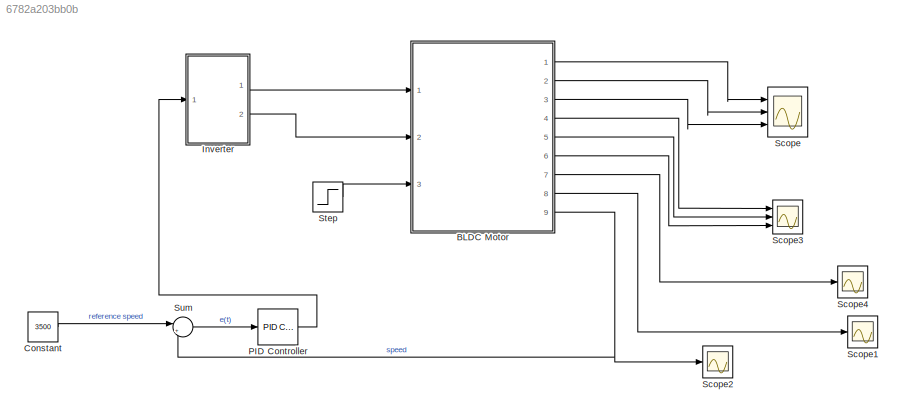
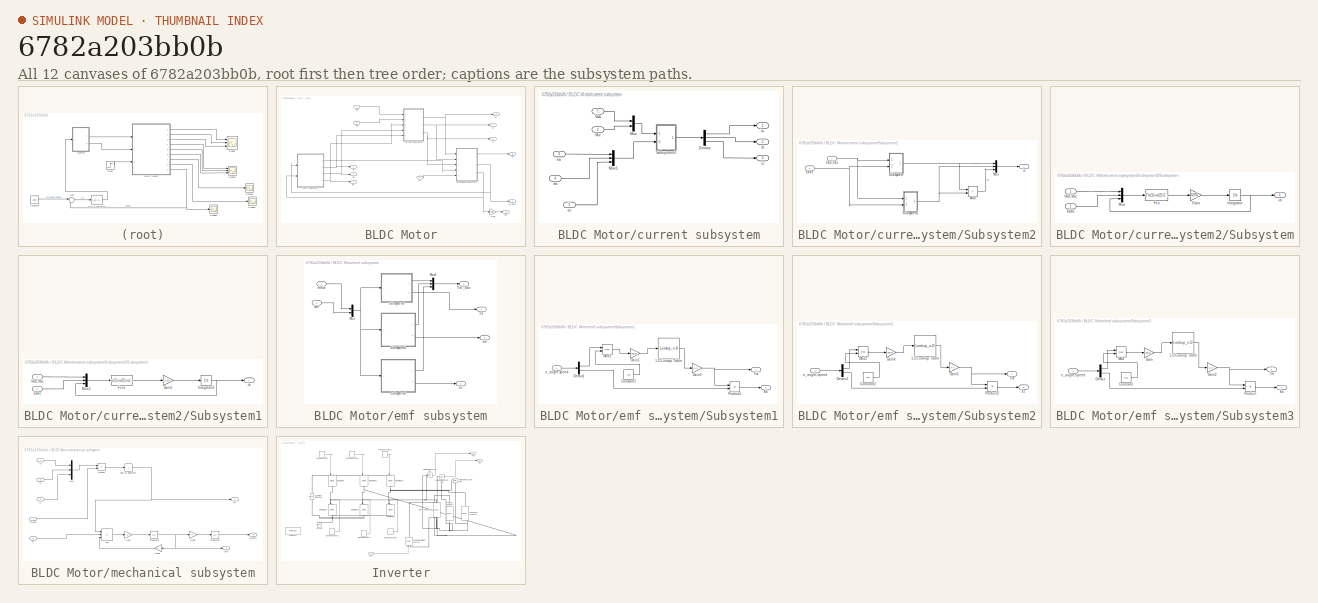
[diagram: thumbnail index - all 12 canvases of the model, root first then tree order]
MODEL slx_6782a203bb0b
KIND model
CONFIG AbsTol = auto
CONFIG EnableMultiTasking = off
CONFIG FixedStep = auto
CONFIG MaxStep = auto
CONFIG MinStep = auto
CONFIG RelTol = 1e-3
CONFIG SampleTimeConstraint = Unconstrained
CONFIG Solver = VariableStepAuto
CONFIG SolverName = VariableStepAuto
CONFIG StartTime = 0.0
CONFIG StopTime = 10.0
WORKSPACE source: mxarray member
WORKSPACE B = 7.9272e-06
WORKSPACE J = 9.25e-05
WORKSPACE K = 0.0255
WORKSPACE L = 0.00028
WORKSPACE P = 8
WORKSPACE R = 0.6
BLOCK [SubSystem] BLDC Motor
  Ports = [3, 9]
  RequestExecContextInheritance = off
BLOCK [Gain] BLDC Motor/Gain
  Gain = 30/pi
BLOCK [Inport] BLDC Motor/TL
  Port = 3
BLOCK [Outport] BLDC Motor/Te
  Port = 8
BLOCK [Inport] BLDC Motor/Vab
BLOCK [Inport] BLDC Motor/Vbc
  Port = 2
BLOCK [SubSystem] BLDC Motor/current subsystem
  Ports = [5, 3]
  RequestExecContextInheritance = off
BLOCK [Demux] BLDC Motor/current subsystem/Demux
  Outputs = 3
  Ports = [1, 3]
BLOCK [Mux] BLDC Motor/current subsystem/Mux
  DisplayOption = bar
  Inputs = 2
  Ports = [2, 1]
BLOCK [Mux] BLDC Motor/current subsystem/Mux1
  DisplayOption = bar
  Inputs = 3
  Ports = [3, 1]
BLOCK [SubSystem] BLDC Motor/current subsystem/Subsystem2
  Ports = [2, 1]
  RequestExecContextInheritance = off
BLOCK [Sum] BLDC Motor/current subsystem/Subsystem2/Add
  IconShape = rectangular
  Inputs = --
  Ports = [2, 1]
BLOCK [Inport] BLDC Motor/current subsystem/Subsystem2/Eabc
  Port = 2
BLOCK [Mux] BLDC Motor/current subsystem/Subsystem2/Mux
  DisplayOption = bar
  Inputs = 3
  Ports = [3, 1]
BLOCK [SubSystem] BLDC Motor/current subsystem/Subsystem2/Subsystem
  Ports = [2, 1]
  RequestExecContextInheritance = off
BLOCK [Inport] BLDC Motor/current subsystem/Subsystem2/Subsystem/Eabc
  Port = 2
BLOCK [Fcn] BLDC Motor/current subsystem/Subsystem2/Subsystem/Fcn
  Expr = 2*u(1)+u(2)-2*u(3)+u(4)+u(5)-3*R*u(6)
BLOCK [Gain] BLDC Motor/current subsystem/Subsystem2/Subsystem/Gain
  Gain = 1/(3*L)
BLOCK [Integrator] BLDC Motor/current subsystem/Subsystem2/Subsystem/Integrator
  Ports = [1, 1]
BLOCK [Mux] BLDC Motor/current subsystem/Subsystem2/Subsystem/Mux
  DisplayOption = bar
  Inputs = 3
  Ports = [3, 1]
BLOCK [Inport] BLDC Motor/current subsystem/Subsystem2/Subsystem/Vab,Vbc
BLOCK [Outport] BLDC Motor/current subsystem/Subsystem2/Subsystem/ia
BLOCK [SubSystem] BLDC Motor/current subsystem/Subsystem2/Subsystem1
  Ports = [2, 1]
  RequestExecContextInheritance = off
BLOCK [Inport] BLDC Motor/current subsystem/Subsystem2/Subsystem1/Eabc
  Port = 2
BLOCK [Fcn] BLDC Motor/current subsystem/Subsystem2/Subsystem1/Fcn1
  Expr = -u(1)+u(2)+u(3)-2*u(4)+u(5)-3*R*u(6)
BLOCK [Gain] BLDC Motor/current subsystem/Subsystem2/Subsystem1/Gain1
  Gain = 1/(3*L)
BLOCK [Integrator] BLDC Motor/current subsystem/Subsystem2/Subsystem1/Integrator1
  Ports = [1, 1]
BLOCK [Mux] BLDC Motor/current subsystem/Subsystem2/Subsystem1/Mux1
  DisplayOption = bar
  Inputs = 3
  Ports = [3, 1]
BLOCK [Inport] BLDC Motor/current subsystem/Subsystem2/Subsystem1/Vab,Vbc
BLOCK [Outport] BLDC Motor/current subsystem/Subsystem2/Subsystem1/ib
BLOCK [Inport] BLDC Motor/current subsystem/Subsystem2/Vab,Vbc
BLOCK [Outport] BLDC Motor/current subsystem/Subsystem2/is
BLOCK [Inport] BLDC Motor/current subsystem/Vab
BLOCK [Inport] BLDC Motor/current subsystem/Vbc
  Port = 2
BLOCK [Inport] BLDC Motor/current subsystem/ea
  Port = 3
BLOCK [Inport] BLDC Motor/current subsystem/eb
  Port = 4
BLOCK [Inport] BLDC Motor/current subsystem/ec
  Port = 5
BLOCK [Outport] BLDC Motor/current subsystem/ia
BLOCK [Outport] BLDC Motor/current subsystem/ib
  Port = 2
BLOCK [Outport] BLDC Motor/current subsystem/ic
  Port = 3
BLOCK [Outport] BLDC Motor/e_theta
  Port = 7
BLOCK [Outport] BLDC Motor/ea
  Port = 3
BLOCK [Outport] BLDC Motor/eb
  Port = 2
BLOCK [Outport] BLDC Motor/ec
BLOCK [SubSystem] BLDC Motor/emf subsystem
  Ports = [2, 4]
  RequestExecContextInheritance = off
BLOCK [Mux] BLDC Motor/emf subsystem/Mux
  DisplayOption = bar
  Inputs = 2
  Ports = [2, 1]
BLOCK [Mux] BLDC Motor/emf subsystem/Mux1
  DisplayOption = bar
  Inputs = 3
  Ports = [3, 1]
BLOCK [SubSystem] BLDC Motor/emf subsystem/Subsystem1
  Ports = [1, 2]
  RequestExecContextInheritance = off
BLOCK [Lookup_n-D] BLDC Motor/emf subsystem/Subsystem1/1-D Lookup Table
  BreakpointsForDimension1 = [0,40,60,120,180,240,300,320,360]
  InternalRulePriority = Speed
  InterpMethod = Cubic spline
  NumberOfTableDimensions = 1
  Ports = [1, 1]
  RndMeth = Simplest
  Table = [-1,-1,-1,1,1,1,-1,-1,-1]
BLOCK [Constant] BLDC Motor/emf subsystem/Subsystem1/Constant1
  Value = 2*pi
BLOCK [Demux] BLDC Motor/emf subsystem/Subsystem1/Demux1
  Outputs = 2
  Ports = [1, 2]
BLOCK [Outport] BLDC Motor/emf subsystem/Subsystem1/Eb
  Port = 2
BLOCK [Gain] BLDC Motor/emf subsystem/Subsystem1/Gain1
  Gain = 180/pi
BLOCK [Gain] BLDC Motor/emf subsystem/Subsystem1/Gain3
  Gain = K/2
BLOCK [Math] BLDC Motor/emf subsystem/Subsystem1/Mod1
  Operator = mod
  Ports = [2, 1]
BLOCK [Product] BLDC Motor/emf subsystem/Subsystem1/Product1
  Ports = [2, 1]
BLOCK [Outport] BLDC Motor/emf subsystem/Subsystem1/Tra
BLOCK [Inport] BLDC Motor/emf subsystem/Subsystem1/e_angle,speed
BLOCK [SubSystem] BLDC Motor/emf subsystem/Subsystem2
  Ports = [1, 2]
  RequestExecContextInheritance = off
BLOCK [Lookup_n-D] BLDC Motor/emf subsystem/Subsystem2/1-D Lookup Table
  BreakpointsForDimension1 = [0,60,80,120,180,240,275,360]
  InternalRulePriority = Speed
  InterpMethod = Cubic spline
  NumberOfTableDimensions = 1
  Ports = [1, 1]
  RndMeth = Simplest
  Table = [1,-1,-1,-1,-1,1,1,1]
BLOCK [Constant] BLDC Motor/emf subsystem/Subsystem2/Constant2
  Value = 2*pi
BLOCK [Demux] BLDC Motor/emf subsystem/Subsystem2/Demux2
  Outputs = 2
  Ports = [1, 2]
BLOCK [Outport] BLDC Motor/emf subsystem/Subsystem2/Ec
  Port = 2
BLOCK [Gain] BLDC Motor/emf subsystem/Subsystem2/Gain4
  Gain = 180/pi
BLOCK [Gain] BLDC Motor/emf subsystem/Subsystem2/Gain5
  Gain = K/2
BLOCK [Math] BLDC Motor/emf subsystem/Subsystem2/Mod2
  Operator = mod
  Ports = [2, 1]
BLOCK [Product] BLDC Motor/emf subsystem/Subsystem2/Product2
  Ports = [2, 1]
BLOCK [Outport] BLDC Motor/emf subsystem/Subsystem2/Tra
BLOCK [Inport] BLDC Motor/emf subsystem/Subsystem2/e_angle,speed
BLOCK [SubSystem] BLDC Motor/emf subsystem/Subsystem3
  Ports = [1, 2]
  RequestExecContextInheritance = off
BLOCK [Lookup_n-D] BLDC Motor/emf subsystem/Subsystem3/1-D Lookup Table
  BreakpointsForDimension1 = [0,40,60,80,120,180,250,275,300,360]
  InternalRulePriority = Speed
  InterpMethod = Cubic spline
  NumberOfTableDimensions = 1
  Ports = [1, 1]
  RndMeth = Simplest
  Table = [1,1,1,1,1,-1,-1,-1,-1,1]
BLOCK [Constant] BLDC Motor/emf subsystem/Subsystem3/Constant
  Value = 2*pi
BLOCK [Demux] BLDC Motor/emf subsystem/Subsystem3/Demux
  Outputs = 2
  Ports = [1, 2]
BLOCK [Outport] BLDC Motor/emf subsystem/Subsystem3/Ea
  Port = 2
BLOCK [Gain] BLDC Motor/emf subsystem/Subsystem3/Gain
  Gain = 180/pi
BLOCK [Gain] BLDC Motor/emf subsystem/Subsystem3/Gain2
  Gain = K/2
BLOCK [Math] BLDC Motor/emf subsystem/Subsystem3/Mod
  Operator = mod
  Ports = [2, 1]
BLOCK [Product] BLDC Motor/emf subsystem/Subsystem3/Product
  Ports = [2, 1]
BLOCK [Outport] BLDC Motor/emf subsystem/Subsystem3/Tra
BLOCK [Inport] BLDC Motor/emf subsystem/Subsystem3/e_angle,speed
BLOCK [Outport] BLDC Motor/emf subsystem/Tra _abc
BLOCK [Outport] BLDC Motor/emf subsystem/ea
  Port = 4
BLOCK [Outport] BLDC Motor/emf subsystem/eb
  Port = 3
BLOCK [Outport] BLDC Motor/emf subsystem/ec
  Port = 2
BLOCK [Inport] BLDC Motor/emf subsystem/theta
BLOCK [Inport] BLDC Motor/emf subsystem/wm
  Port = 2
BLOCK [Outport] BLDC Motor/ia
  Port = 6
BLOCK [Outport] BLDC Motor/ib
  Port = 4
BLOCK [Outport] BLDC Motor/ic
  Port = 5
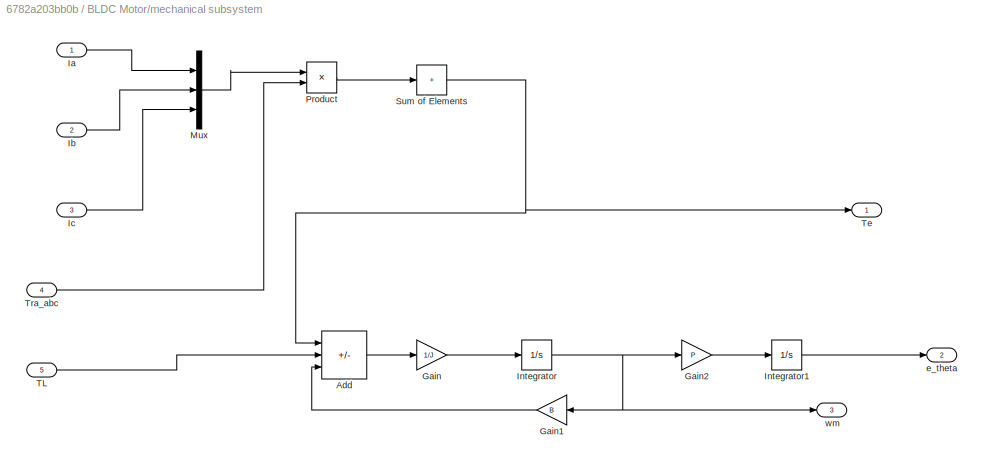
BLOCK [SubSystem] BLDC Motor/mechanical subsystem
  Ports = [5, 3]
  RequestExecContextInheritance = off
BLOCK [Sum] BLDC Motor/mechanical subsystem/Add
  IconShape = rectangular
  Inputs = +--
  Ports = [3, 1]
BLOCK [Gain] BLDC Motor/mechanical subsystem/Gain
  Gain = 1/J
BLOCK [Gain] BLDC Motor/mechanical subsystem/Gain1
  Gain = B
BLOCK [Gain] BLDC Motor/mechanical subsystem/Gain2
  Gain = P
BLOCK [Inport] BLDC Motor/mechanical subsystem/Ia
BLOCK [Inport] BLDC Motor/mechanical subsystem/Ib
  Port = 2
BLOCK [Inport] BLDC Motor/mechanical subsystem/Ic
  Port = 3
BLOCK [Integrator] BLDC Motor/mechanical subsystem/Integrator
  Ports = [1, 1]
BLOCK [Integrator] BLDC Motor/mechanical subsystem/Integrator1
  Ports = [1, 1]
BLOCK [Mux] BLDC Motor/mechanical subsystem/Mux
  DisplayOption = bar
  Inputs = 3
  Ports = [3, 1]
BLOCK [Product] BLDC Motor/mechanical subsystem/Product
  NameLocation = top
  Ports = [2, 1]
BLOCK [Sum] BLDC Motor/mechanical subsystem/Sum of Elements
  IconShape = rectangular
  Inputs = +
  Ports = [1, 1]
BLOCK [Inport] BLDC Motor/mechanical subsystem/TL
  Port = 5
BLOCK [Outport] BLDC Motor/mechanical subsystem/Te
BLOCK [Inport] BLDC Motor/mechanical subsystem/Tra_abc
  Port = 4
BLOCK [Outport] BLDC Motor/mechanical subsystem/e_theta
  Port = 2
BLOCK [Outport] BLDC Motor/mechanical subsystem/wm
  Port = 3
BLOCK [Outport] BLDC Motor/wm
  Port = 9
BLOCK [Constant] Constant
  Value = 3500
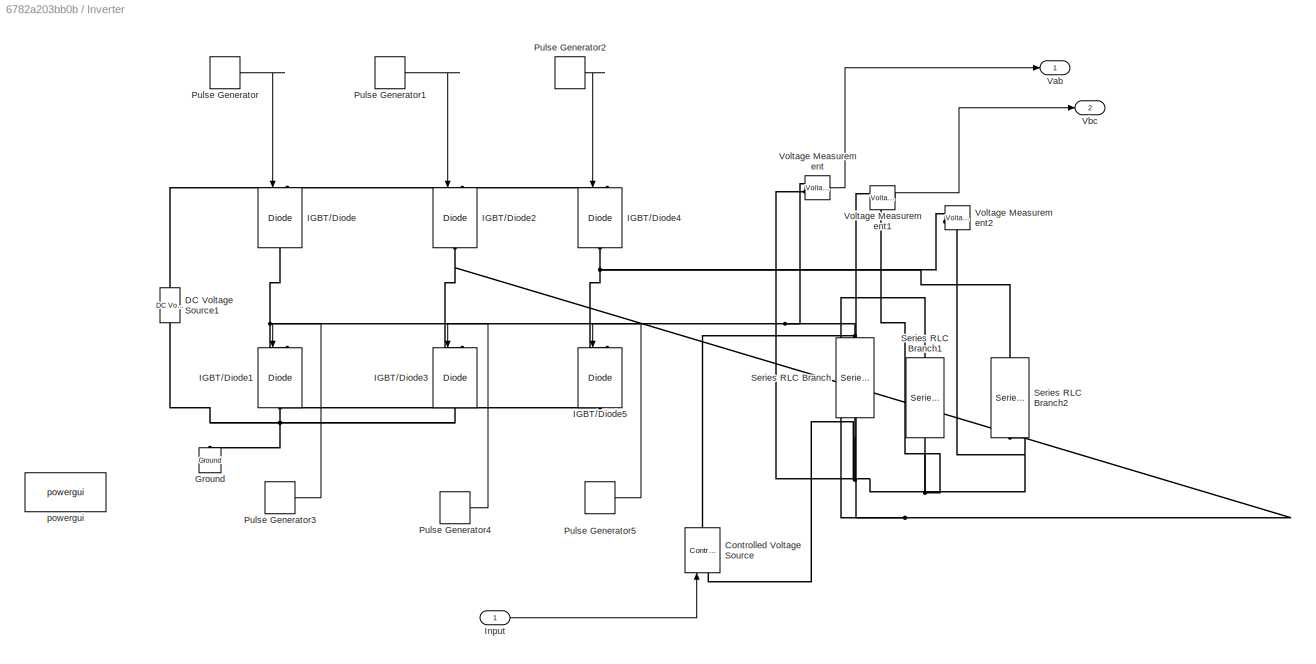
BLOCK [SubSystem] Inverter
  Ports = [1, 2]
  RequestExecContextInheritance = off
BLOCK [Reference] Inverter/Controlled Voltage Source  REF=powerlib/Electrical
Sources/Controlled Voltage Source
  NameLocation = right
  Ports = [1, 0, 0, 0, 0, 1, 1]
  SourceBlock = powerlib/Electrical\nSources/Controlled Voltage Source
  SourceProductBaseCode = PS
  SourceType = Controlled Voltage Source
BLOCK [Reference] Inverter/DC Voltage Source1  REF=powerlib/Electrical
Sources/DC Voltage Source
  NameLocation = right
  Ports = [0, 0, 0, 0, 0, 1, 1]
  SourceBlock = powerlib/Electrical\nSources/DC Voltage Source
  SourceProductBaseCode = PS
  SourceType = DC Voltage Source
BLOCK [Reference] Inverter/Ground  REF=powerlib/Elements/Ground
  NameLocation = right
  Ports = [0, 0, 0, 0, 0, 1]
  SourceBlock = powerlib/Elements/Ground
  SourceProductBaseCode = PS
  SourceType = Ground
BLOCK [Reference] Inverter/IGBT//Diode  REF=powerlib/Power
Electronics/IGBT//Diode
  NameLocation = left
  Ports = [1, 0, 0, 0, 0, 1, 1]
  SourceBlock = powerlib/Power\nElectronics/IGBT//Diode
  SourceProductBaseCode = PS
  SourceType = IGBT/Diode
BLOCK [Reference] Inverter/IGBT//Diode1  REF=powerlib/Power
Electronics/IGBT//Diode
  NameLocation = left
  Ports = [1, 0, 0, 0, 0, 1, 1]
  SourceBlock = powerlib/Power\nElectronics/IGBT//Diode
  SourceProductBaseCode = PS
  SourceType = IGBT/Diode
BLOCK [Reference] Inverter/IGBT//Diode2  REF=powerlib/Power
Electronics/IGBT//Diode
  NameLocation = left
  Ports = [1, 0, 0, 0, 0, 1, 1]
  SourceBlock = powerlib/Power\nElectronics/IGBT//Diode
  SourceProductBaseCode = PS
  SourceType = IGBT/Diode
BLOCK [Reference] Inverter/IGBT//Diode3  REF=powerlib/Power
Electronics/IGBT//Diode
  NameLocation = left
  Ports = [1, 0, 0, 0, 0, 1, 1]
  SourceBlock = powerlib/Power\nElectronics/IGBT//Diode
  SourceProductBaseCode = PS
  SourceType = IGBT/Diode
BLOCK [Reference] Inverter/IGBT//Diode4  REF=powerlib/Power
Electronics/IGBT//Diode
  NameLocation = left
  Ports = [1, 0, 0, 0, 0, 1, 1]
  SourceBlock = powerlib/Power\nElectronics/IGBT//Diode
  SourceProductBaseCode = PS
  SourceType = IGBT/Diode
BLOCK [Reference] Inverter/IGBT//Diode5  REF=powerlib/Power
Electronics/IGBT//Diode
  NameLocation = left
  Ports = [1, 0, 0, 0, 0, 1, 1]
  SourceBlock = powerlib/Power\nElectronics/IGBT//Diode
  SourceProductBaseCode = PS
  SourceType = IGBT/Diode
BLOCK [Inport] Inverter/Input
BLOCK [DiscretePulseGenerator] Inverter/Pulse Generator
  Period = 2e-3
  Ports = [0, 1]
  PulseType = Time based
  PulseWidth = 50
BLOCK [DiscretePulseGenerator] Inverter/Pulse Generator1
  Period = 2e-3
  PhaseDelay = (2e-3)*(120/360)
  Ports = [0, 1]
  PulseType = Time based
  PulseWidth = 50
BLOCK [DiscretePulseGenerator] Inverter/Pulse Generator2
  Period = 2e-3
  PhaseDelay = (2e-3)*(240/360)
  Ports = [0, 1]
  PulseType = Time based
  PulseWidth = 50
BLOCK [DiscretePulseGenerator] Inverter/Pulse Generator3
  Period = 2e-3
  PhaseDelay = (2e-3)*(180/360)
  Ports = [0, 1]
  PulseType = Time based
  PulseWidth = 50
BLOCK [DiscretePulseGenerator] Inverter/Pulse Generator4
  Period = 2e-3
  PhaseDelay = (2e-3)*(300/360)
  Ports = [0, 1]
  PulseType = Time based
  PulseWidth = 50
BLOCK [DiscretePulseGenerator] Inverter/Pulse Generator5
  Period = 2e-3
  PhaseDelay = (2e-3)*(60/360)
  Ports = [0, 1]
  PulseType = Time based
  PulseWidth = 50
BLOCK [Reference] Inverter/Series RLC Branch  REF=powerlib/Elements/Series RLC Branch
  NameLocation = left
  Ports = [0, 0, 0, 0, 0, 1, 1]
  SourceBlock = powerlib/Elements/Series RLC Branch
  SourceProductBaseCode = PS
  SourceType = Series RLC Branch
BLOCK [Reference] Inverter/Series RLC Branch1  REF=powerlib/Elements/Series RLC Branch
  NameLocation = left
  Ports = [0, 0, 0, 0, 0, 1, 1]
  SourceBlock = powerlib/Elements/Series RLC Branch
  SourceProductBaseCode = PS
  SourceType = Series RLC Branch
BLOCK [Reference] Inverter/Series RLC Branch2  REF=powerlib/Elements/Series RLC Branch
  NameLocation = left
  Ports = [0, 0, 0, 0, 0, 1, 1]
  SourceBlock = powerlib/Elements/Series RLC Branch
  SourceProductBaseCode = PS
  SourceType = Series RLC Branch
BLOCK [Outport] Inverter/Vab
BLOCK [Outport] Inverter/Vbc
  Port = 2
BLOCK [Reference] Inverter/Voltage Measurement  REF=powerlib/Measurements/Voltage Measurement
  Ports = [0, 1, 0, 0, 0, 2]
  SourceBlock = powerlib/Measurements/Voltage Measurement
  SourceProductBaseCode = PS
  SourceType = Voltage Measurement
  UserDataPersistent = on
BLOCK [Reference] Inverter/Voltage Measurement1  REF=powerlib/Measurements/Voltage Measurement
  Ports = [0, 1, 0, 0, 0, 2]
  SourceBlock = powerlib/Measurements/Voltage Measurement
  SourceProductBaseCode = PS
  SourceType = Voltage Measurement
  UserDataPersistent = on
BLOCK [Reference] Inverter/Voltage Measurement2  REF=powerlib/Measurements/Voltage Measurement
  Ports = [0, 1, 0, 0, 0, 2]
  SourceBlock = powerlib/Measurements/Voltage Measurement
  SourceProductBaseCode = PS
  SourceType = Voltage Measurement
  UserDataPersistent = on
BLOCK [Reference] Inverter/powergui  REF=powerlib/powergui
  Ports = []
  Priority = 1
  SourceBlock = powerlib/powergui
  SourceProductBaseCode = PS
  SourceType = PSB option menu block
BLOCK [Reference] PID Controller  REF=simulink/Continuous/PID Controller
  Ports = [1, 1]
  SourceBlock = simulink/Continuous/PID Controller
  SourceProductBaseCode = SL
  SourceType = PID 1dof
BLOCK [Scope] Scope
  Floating = off
  NumInputPorts = 3
  Ports = [3]
  ScopeSpecificationString = Simulink.scopes.TimeScopeBlockCfg('CurrentConfiguration', extmgr.ConfigurationSet(extmgr.Configuration('Core','General UI',true),extmgr.Configuration('Core','Source UI',true),extmgr.Configuration('Sources','WiredSimulink',true,'DataLoggingVariableName','ScopeData1'),extmgr.Configuration('Visuals','Time Domain',true,'SerializedDisplays',{struct('MinYLimReal','-120.65892','MaxYLimReal','124.34706','...<+2775ch>
BLOCK [Scope] Scope1
  Floating = off
  NumInputPorts = 1
  Ports = [1]
  ScopeSpecificationString = Simulink.scopes.TimeScopeBlockCfg('CurrentConfiguration', extmgr.ConfigurationSet(extmgr.Configuration('Core','General UI',true),extmgr.Configuration('Core','Source UI',true),extmgr.Configuration('Sources','WiredSimulink',true,'DataLoggingVariableName','ScopeData2'),extmgr.Configuration('Visuals','Time Domain',true,'SerializedDisplays',{struct('MinYLimReal','-505.66862','MaxYLimReal','656.25149','...<+1404ch>
BLOCK [Scope] Scope2
  Floating = off
  NumInputPorts = 1
  Ports = [1]
  ScopeSpecificationString = Simulink.scopes.TimeScopeBlockCfg('CurrentConfiguration', extmgr.ConfigurationSet(extmgr.Configuration('Core','General UI',true),extmgr.Configuration('Core','Source UI',true),extmgr.Configuration('Sources','WiredSimulink',true,'DataLoggingVariableName','ScopeData3'),extmgr.Configuration('Visuals','Time Domain',true,'SerializedDisplays',{struct('MinYLimReal','-17311.48572','MaxYLimReal','14299.5116...<+1438ch>
BLOCK [Scope] Scope3
  Floating = off
  NumInputPorts = 3
  Ports = [3]
  ScopeSpecificationString = Simulink.scopes.TimeScopeBlockCfg('CurrentConfiguration', extmgr.ConfigurationSet(extmgr.Configuration('Core','General UI',true),extmgr.Configuration('Core','Source UI',true),extmgr.Configuration('Sources','WiredSimulink',true,'DataLoggingVariableName','ScopeData4'),extmgr.Configuration('Visuals','Time Domain',true,'SerializedDisplays',{struct('MinYLimReal','-38.91852','MaxYLimReal','38.32328','YL...<+2775ch>
BLOCK [Scope] Scope4
  Floating = off
  NumInputPorts = 1
  Ports = [1]
  ScopeSpecificationString = Simulink.scopes.TimeScopeBlockCfg('CurrentConfiguration', extmgr.ConfigurationSet(extmgr.Configuration('Core','General UI',true),extmgr.Configuration('Core','Source UI',true),extmgr.Configuration('Sources','WiredSimulink',true),extmgr.Configuration('Visuals','Time Domain',true,'SerializedDisplays',{struct('MinYLimReal','-3470.44468','MaxYLimReal','31234.00216','YLabelReal','','MinYLimMag','  0.000...<+1383ch>
BLOCK [Step] Step
  After = 10
  SampleTime = 0
  Time = 0.1
BLOCK [Sum] Sum
  Inputs = |+-
  Ports = [2, 1]
LINE BLDC Motor/Gain:1 -> BLDC Motor/wm:1
LINE BLDC Motor/TL:1 -> BLDC Motor/mechanical subsystem:5
LINE BLDC Motor/Vab:1 -> BLDC Motor/current subsystem:1
LINE BLDC Motor/Vbc:1 -> BLDC Motor/current subsystem:2
LINE BLDC Motor/current subsystem/Demux:1 -> BLDC Motor/current subsystem/ia:1
LINE BLDC Motor/current subsystem/Demux:2 -> BLDC Motor/current subsystem/ib:1
LINE BLDC Motor/current subsystem/Demux:3 -> BLDC Motor/current subsystem/ic:1
LINE BLDC Motor/current subsystem/Mux1:1 -> BLDC Motor/current subsystem/Subsystem2:2
LINE BLDC Motor/current subsystem/Mux:1 -> BLDC Motor/current subsystem/Subsystem2:1
LINE BLDC Motor/current subsystem/Subsystem2/Add:1 -> BLDC Motor/current subsystem/Subsystem2/Mux:3
NET BLDC Motor/current subsystem/Subsystem2/Eabc:1 -> BLDC Motor/current subsystem/Subsystem2/Subsystem1:2, BLDC Motor/current subsystem/Subsystem2/Subsystem:2
LINE BLDC Motor/current subsystem/Subsystem2/Mux:1 -> BLDC Motor/current subsystem/Subsystem2/is:1
LINE BLDC Motor/current subsystem/Subsystem2/Subsystem/Eabc:1 -> BLDC Motor/current subsystem/Subsystem2/Subsystem/Mux:2
LINE BLDC Motor/current subsystem/Subsystem2/Subsystem/Fcn:1 -> BLDC Motor/current subsystem/Subsystem2/Subsystem/Gain:1
LINE BLDC Motor/current subsystem/Subsystem2/Subsystem/Gain:1 -> BLDC Motor/current subsystem/Subsystem2/Subsystem/Integrator:1
NET BLDC Motor/current subsystem/Subsystem2/Subsystem/Integrator:1 -> BLDC Motor/current subsystem/Subsystem2/Subsystem/Mux:3, BLDC Motor/current subsystem/Subsystem2/Subsystem/ia:1
LINE BLDC Motor/current subsystem/Subsystem2/Subsystem/Mux:1 -> BLDC Motor/current subsystem/Subsystem2/Subsystem/Fcn:1
LINE BLDC Motor/current subsystem/Subsystem2/Subsystem/Vab,Vbc:1 -> BLDC Motor/current subsystem/Subsystem2/Subsystem/Mux:1
LINE BLDC Motor/current subsystem/Subsystem2/Subsystem1/Eabc:1 -> BLDC Motor/current subsystem/Subsystem2/Subsystem1/Mux1:2
LINE BLDC Motor/current subsystem/Subsystem2/Subsystem1/Fcn1:1 -> BLDC Motor/current subsystem/Subsystem2/Subsystem1/Gain1:1
LINE BLDC Motor/current subsystem/Subsystem2/Subsystem1/Gain1:1 -> BLDC Motor/current subsystem/Subsystem2/Subsystem1/Integrator1:1
NET BLDC Motor/current subsystem/Subsystem2/Subsystem1/Integrator1:1 -> BLDC Motor/current subsystem/Subsystem2/Subsystem1/Mux1:3, BLDC Motor/current subsystem/Subsystem2/Subsystem1/ib:1
LINE BLDC Motor/current subsystem/Subsystem2/Subsystem1/Mux1:1 -> BLDC Motor/current subsystem/Subsystem2/Subsystem1/Fcn1:1
LINE BLDC Motor/current subsystem/Subsystem2/Subsystem1/Vab,Vbc:1 -> BLDC Motor/current subsystem/Subsystem2/Subsystem1/Mux1:1
NET BLDC Motor/current subsystem/Subsystem2/Subsystem1:1 -> BLDC Motor/current subsystem/Subsystem2/Add:2, BLDC Motor/current subsystem/Subsystem2/Mux:2
NET BLDC Motor/current subsystem/Subsystem2/Subsystem:1 -> BLDC Motor/current subsystem/Subsystem2/Add:1, BLDC Motor/current subsystem/Subsystem2/Mux:1
NET BLDC Motor/current subsystem/Subsystem2/Vab,Vbc:1 -> BLDC Motor/current subsystem/Subsystem2/Subsystem1:1, BLDC Motor/current subsystem/Subsystem2/Subsystem:1
LINE BLDC Motor/current subsystem/Subsystem2:1 -> BLDC Motor/current subsystem/Demux:1
LINE BLDC Motor/current subsystem/Vab:1 -> BLDC Motor/current subsystem/Mux:1
LINE BLDC Motor/current subsystem/Vbc:1 -> BLDC Motor/current subsystem/Mux:2
LINE BLDC Motor/current subsystem/ea:1 -> BLDC Motor/current subsystem/Mux1:1
LINE BLDC Motor/current subsystem/eb:1 -> BLDC Motor/current subsystem/Mux1:2
LINE BLDC Motor/current subsystem/ec:1 -> BLDC Motor/current subsystem/Mux1:3
NET BLDC Motor/current subsystem:1 -> BLDC Motor/ia:1, BLDC Motor/mechanical subsystem:1
NET BLDC Motor/current subsystem:2 -> BLDC Motor/ib:1, BLDC Motor/mechanical subsystem:2
NET BLDC Motor/current subsystem:3 -> BLDC Motor/ic:1, BLDC Motor/mechanical subsystem:3
LINE BLDC Motor/emf subsystem/Mux1:1 -> BLDC Motor/emf subsystem/Tra _abc:1
NET BLDC Motor/emf subsystem/Mux:1 -> BLDC Motor/emf subsystem/Subsystem1:1, BLDC Motor/emf subsystem/Subsystem2:1, BLDC Motor/emf subsystem/Subsystem3:1
LINE BLDC Motor/emf subsystem/Subsystem1/1-D Lookup Table:1 -> BLDC Motor/emf subsystem/Subsystem1/Gain3:1
LINE BLDC Motor/emf subsystem/Subsystem1/Constant1:1 -> BLDC Motor/emf subsystem/Subsystem1/Mod1:2
LINE BLDC Motor/emf subsystem/Subsystem1/Demux1:1 -> BLDC Motor/emf subsystem/Subsystem1/Mod1:1
LINE BLDC Motor/emf subsystem/Subsystem1/Demux1:2 -> BLDC Motor/emf subsystem/Subsystem1/Product1:2
LINE BLDC Motor/emf subsystem/Subsystem1/Gain1:1 -> BLDC Motor/emf subsystem/Subsystem1/1-D Lookup Table:1
NET BLDC Motor/emf subsystem/Subsystem1/Gain3:1 -> BLDC Motor/emf subsystem/Subsystem1/Product1:1, BLDC Motor/emf subsystem/Subsystem1/Tra:1
LINE BLDC Motor/emf subsystem/Subsystem1/Mod1:1 -> BLDC Motor/emf subsystem/Subsystem1/Gain1:1
LINE BLDC Motor/emf subsystem/Subsystem1/Product1:1 -> BLDC Motor/emf subsystem/Subsystem1/Eb:1
LINE BLDC Motor/emf subsystem/Subsystem1/e_angle,speed:1 -> BLDC Motor/emf subsystem/Subsystem1/Demux1:1
LINE BLDC Motor/emf subsystem/Subsystem1:1 -> BLDC Motor/emf subsystem/Mux1:2
LINE BLDC Motor/emf subsystem/Subsystem1:2 -> BLDC Motor/emf subsystem/eb:1
LINE BLDC Motor/emf subsystem/Subsystem2/1-D Lookup Table:1 -> BLDC Motor/emf subsystem/Subsystem2/Gain5:1
LINE BLDC Motor/emf subsystem/Subsystem2/Constant2:1 -> BLDC Motor/emf subsystem/Subsystem2/Mod2:2
LINE BLDC Motor/emf subsystem/Subsystem2/Demux2:1 -> BLDC Motor/emf subsystem/Subsystem2/Mod2:1
LINE BLDC Motor/emf subsystem/Subsystem2/Demux2:2 -> BLDC Motor/emf subsystem/Subsystem2/Product2:2
LINE BLDC Motor/emf subsystem/Subsystem2/Gain4:1 -> BLDC Motor/emf subsystem/Subsystem2/1-D Lookup Table:1
NET BLDC Motor/emf subsystem/Subsystem2/Gain5:1 -> BLDC Motor/emf subsystem/Subsystem2/Product2:1, BLDC Motor/emf subsystem/Subsystem2/Tra:1
LINE BLDC Motor/emf subsystem/Subsystem2/Mod2:1 -> BLDC Motor/emf subsystem/Subsystem2/Gain4:1
LINE BLDC Motor/emf subsystem/Subsystem2/Product2:1 -> BLDC Motor/emf subsystem/Subsystem2/Ec:1
LINE BLDC Motor/emf subsystem/Subsystem2/e_angle,speed:1 -> BLDC Motor/emf subsystem/Subsystem2/Demux2:1
LINE BLDC Motor/emf subsystem/Subsystem2:1 -> BLDC Motor/emf subsystem/Mux1:3
LINE BLDC Motor/emf subsystem/Subsystem2:2 -> BLDC Motor/emf subsystem/ec:1
LINE BLDC Motor/emf subsystem/Subsystem3/1-D Lookup Table:1 -> BLDC Motor/emf subsystem/Subsystem3/Gain2:1
LINE BLDC Motor/emf subsystem/Subsystem3/Constant:1 -> BLDC Motor/emf subsystem/Subsystem3/Mod:2
LINE BLDC Motor/emf subsystem/Subsystem3/Demux:1 -> BLDC Motor/emf subsystem/Subsystem3/Mod:1
LINE BLDC Motor/emf subsystem/Subsystem3/Demux:2 -> BLDC Motor/emf subsystem/Subsystem3/Product:2
NET BLDC Motor/emf subsystem/Subsystem3/Gain2:1 -> BLDC Motor/emf subsystem/Subsystem3/Product:1, BLDC Motor/emf subsystem/Subsystem3/Tra:1
LINE BLDC Motor/emf subsystem/Subsystem3/Gain:1 -> BLDC Motor/emf subsystem/Subsystem3/1-D Lookup Table:1
LINE BLDC Motor/emf subsystem/Subsystem3/Mod:1 -> BLDC Motor/emf subsystem/Subsystem3/Gain:1
LINE BLDC Motor/emf subsystem/Subsystem3/Product:1 -> BLDC Motor/emf subsystem/Subsystem3/Ea:1
LINE BLDC Motor/emf subsystem/Subsystem3/e_angle,speed:1 -> BLDC Motor/emf subsystem/Subsystem3/Demux:1
LINE BLDC Motor/emf subsystem/Subsystem3:1 -> BLDC Motor/emf subsystem/Mux1:1
LINE BLDC Motor/emf subsystem/Subsystem3:2 -> BLDC Motor/emf subsystem/ea:1
LINE BLDC Motor/emf subsystem/theta:1 -> BLDC Motor/emf subsystem/Mux:1
LINE BLDC Motor/emf subsystem/wm:1 -> BLDC Motor/emf subsystem/Mux:2
LINE BLDC Motor/emf subsystem:1 -> BLDC Motor/mechanical subsystem:4
NET BLDC Motor/emf subsystem:2 -> BLDC Motor/current subsystem:5, BLDC Motor/ec:1
NET BLDC Motor/emf subsystem:3 -> BLDC Motor/current subsystem:4, BLDC Motor/eb:1
NET BLDC Motor/emf subsystem:4 -> BLDC Motor/current subsystem:3, BLDC Motor/ea:1
LINE BLDC Motor/mechanical subsystem/Add:1 -> BLDC Motor/mechanical subsystem/Gain:1
LINE BLDC Motor/mechanical subsystem/Gain1:1 -> BLDC Motor/mechanical subsystem/Add:3
LINE BLDC Motor/mechanical subsystem/Gain2:1 -> BLDC Motor/mechanical subsystem/Integrator1:1
LINE BLDC Motor/mechanical subsystem/Gain:1 -> BLDC Motor/mechanical subsystem/Integrator:1
LINE BLDC Motor/mechanical subsystem/Ia:1 -> BLDC Motor/mechanical subsystem/Mux:1
LINE BLDC Motor/mechanical subsystem/Ib:1 -> BLDC Motor/mechanical subsystem/Mux:2
LINE BLDC Motor/mechanical subsystem/Ic:1 -> BLDC Motor/mechanical subsystem/Mux:3
LINE BLDC Motor/mechanical subsystem/Integrator1:1 -> BLDC Motor/mechanical subsystem/e_theta:1
NET BLDC Motor/mechanical subsystem/Integrator:1 -> BLDC Motor/mechanical subsystem/Gain1:1, BLDC Motor/mechanical subsystem/Gain2:1, BLDC Motor/mechanical subsystem/wm:1
LINE BLDC Motor/mechanical subsystem/Mux:1 -> BLDC Motor/mechanical subsystem/Product:1
LINE BLDC Motor/mechanical subsystem/Product:1 -> BLDC Motor/mechanical subsystem/Sum of Elements:1
NET BLDC Motor/mechanical subsystem/Sum of Elements:1 -> BLDC Motor/mechanical subsystem/Add:1, BLDC Motor/mechanical subsystem/Te:1
LINE BLDC Motor/mechanical subsystem/TL:1 -> BLDC Motor/mechanical subsystem/Add:2
LINE BLDC Motor/mechanical subsystem/Tra_abc:1 -> BLDC Motor/mechanical subsystem/Product:2
LINE BLDC Motor/mechanical subsystem:1 -> BLDC Motor/Te:1
NET BLDC Motor/mechanical subsystem:2 -> BLDC Motor/e_theta:1, BLDC Motor/emf subsystem:1
NET BLDC Motor/mechanical subsystem:3 -> BLDC Motor/Gain:1, BLDC Motor/emf subsystem:2
LINE BLDC Motor:1 -> Scope:1
LINE BLDC Motor:2 -> Scope:2
LINE BLDC Motor:3 -> Scope:3
LINE BLDC Motor:4 -> Scope3:1
LINE BLDC Motor:5 -> Scope3:2
LINE BLDC Motor:6 -> Scope3:3
LINE BLDC Motor:7 -> Scope4:1
LINE BLDC Motor:8 -> Scope1:1
NET BLDC Motor:9 -> Scope2:1, Sum:2
LINE Constant:1 -> Sum:1
LINE Inverter/Input:1 -> Inverter/Controlled Voltage Source:1
LINE Inverter/Pulse Generator1:1 -> Inverter/IGBT//Diode2:1
LINE Inverter/Pulse Generator2:1 -> Inverter/IGBT//Diode4:1
LINE Inverter/Pulse Generator3:1 -> Inverter/IGBT//Diode1:1
LINE Inverter/Pulse Generator4:1 -> Inverter/IGBT//Diode3:1
LINE Inverter/Pulse Generator5:1 -> Inverter/IGBT//Diode5:1
LINE Inverter/Pulse Generator:1 -> Inverter/IGBT//Diode:1
LINE Inverter/Voltage Measurement1:1 -> Inverter/Vbc:1
LINE Inverter/Voltage Measurement:1 -> Inverter/Vab:1
LINE Inverter:1 -> BLDC Motor:1
LINE Inverter:2 -> BLDC Motor:2
LINE PID Controller:1 -> Inverter:1
LINE Step:1 -> BLDC Motor:3
LINE Sum:1 -> PID Controller:1
PNET net1: Inverter/Controlled Voltage Source:LConn1 -- Inverter/Series RLC Branch1:RConn1 -- Inverter/Series RLC Branch2:RConn1 -- Inverter/Series RLC Branch:RConn1 -- Inverter/Voltage Measurement1:LConn2 -- Inverter/Voltage Measurement2:LConn2 -- Inverter/Voltage Measurement:LConn2
PNET net2: Inverter/Controlled Voltage Source:RConn1 -- Inverter/IGBT//Diode1:LConn1 -- Inverter/IGBT//Diode:RConn1 -- Inverter/Series RLC Branch:LConn1 -- Inverter/Voltage Measurement:LConn1
PNET net3: Inverter/DC Voltage Source1:LConn1 -- Inverter/Ground:LConn1 -- Inverter/IGBT//Diode1:RConn1 -- Inverter/IGBT//Diode3:RConn1 -- Inverter/IGBT//Diode5:RConn1
PNET net4: Inverter/DC Voltage Source1:RConn1 -- Inverter/IGBT//Diode2:LConn1 -- Inverter/IGBT//Diode4:LConn1 -- Inverter/IGBT//Diode:LConn1
PNET net5: Inverter/IGBT//Diode2:RConn1 -- Inverter/IGBT//Diode3:LConn1 -- Inverter/Series RLC Branch1:LConn1 -- Inverter/Voltage Measurement1:LConn1
PNET net6: Inverter/IGBT//Diode4:RConn1 -- Inverter/IGBT//Diode5:LConn1 -- Inverter/Series RLC Branch2:LConn1 -- Inverter/Voltage Measurement2:LConn1
note: NET lines group one-source signal fan-out (src -> all destinations, sorted); 1:1 wires keep LINE; PNET lines group multi-terminal physical nets as a canonical sorted terminal list (undirected conserving connections); 2-terminal nets keep the pairwise PLINE form
